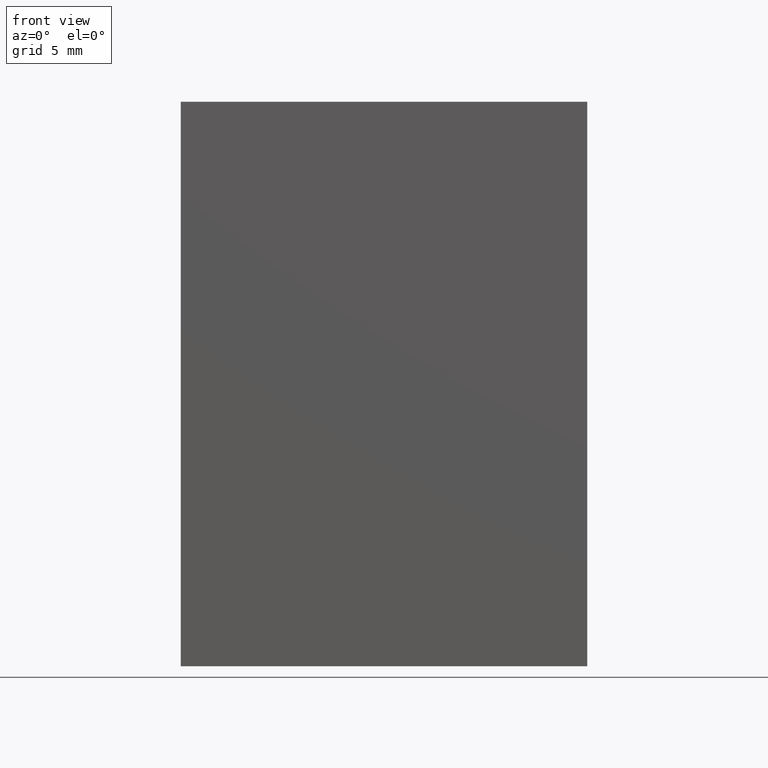
[diagram: clean part render]
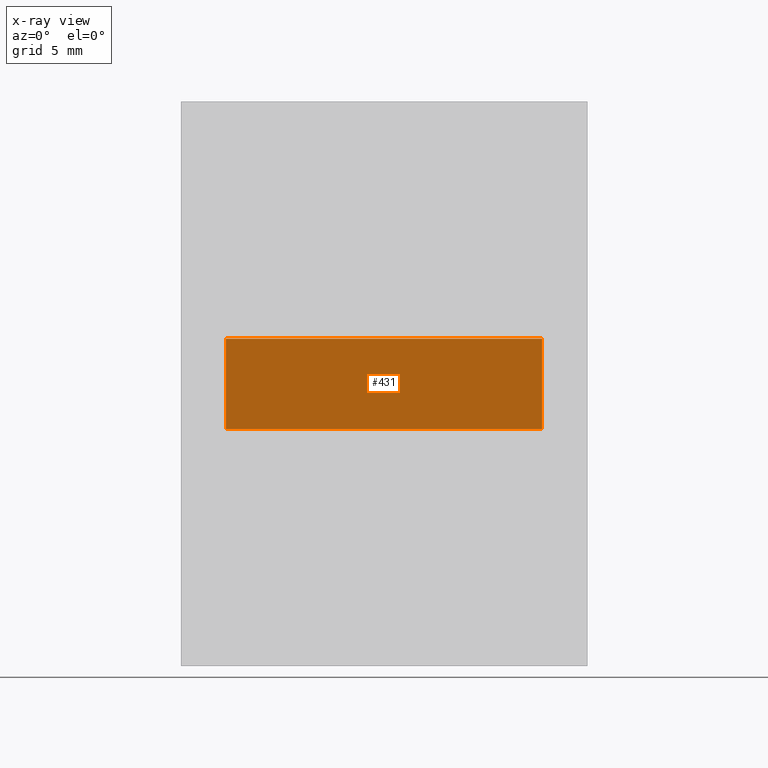
[diagram: x-ray — body ghosted, one internal face saturated and labeled with its STEP entity id]
A machine part, front view, then the same camera in x-ray: the body is ghosted and one INTERNAL B-rep face — a face not visible from any outside direction — is saturated and labeled: STEP entity #431.
In plain terms, the highlighted planar face has unit normal (0, -1, 0).
Its self-contained STEP definition (entity closure, byte-faithful):
#36=PLANE('',#527);
#58=FACE_OUTER_BOUND('',#85,.T.);
#85=EDGE_LOOP('',(#330,#331,#332,#333));
#113=LINE('',#705,#160);
#117=LINE('',#712,#164);
#118=LINE('',#715,#165);
#119=LINE('',#716,#166);
#160=VECTOR('',#582,10.);
#164=VECTOR('',#588,10.);
#165=VECTOR('',#591,10.);
#166=VECTOR('',#592,10.);
#220=VERTEX_POINT('',#702);
#221=VERTEX_POINT('',#704);
#223=VERTEX_POINT('',#710);
#224=VERTEX_POINT('',#714);
#261=EDGE_CURVE('',#220,#221,#113,.T.);
#265=EDGE_CURVE('',#220,#223,#117,.T.);
#266=EDGE_CURVE('',#224,#223,#118,.T.);
#267=EDGE_CURVE('',#221,#224,#119,.T.);
#330=ORIENTED_EDGE('',*,*,#265,.T.);
#331=ORIENTED_EDGE('',*,*,#266,.F.);
#332=ORIENTED_EDGE('',*,*,#267,.F.);
#333=ORIENTED_EDGE('',*,*,#261,.F.);
#431=ADVANCED_FACE('',(#58),#36,.T.);
#527=AXIS2_PLACEMENT_3D('',#713,#589,#590);
#582=DIRECTION('',(1.,3.1720657846433E-16,0.));
#588=DIRECTION('',(0.,0.,-1.));
#589=DIRECTION('center_axis',(3.1720657846433E-16,-1.,0.));
#590=DIRECTION('ref_axis',(-1.,-3.1720657846433E-16,0.));
#591=DIRECTION('',(-1.,-3.1720657846433E-16,0.));
#592=DIRECTION('',(0.,0.,-1.));
#702=CARTESIAN_POINT('',(-7.,-4.,13.));
#704=CARTESIAN_POINT('',(7.,-4.,13.));
#705=CARTESIAN_POINT('',(7.,-4.,13.));
#710=CARTESIAN_POINT('',(-7.,-4.,9.));
#712=CARTESIAN_POINT('',(-7.,-4.,11.));
#713=CARTESIAN_POINT('Origin',(7.,-4.,11.));
#714=CARTESIAN_POINT('',(7.,-4.,9.));
#715=CARTESIAN_POINT('',(7.,-4.,9.));
#716=CARTESIAN_POINT('',(7.,-4.,11.));